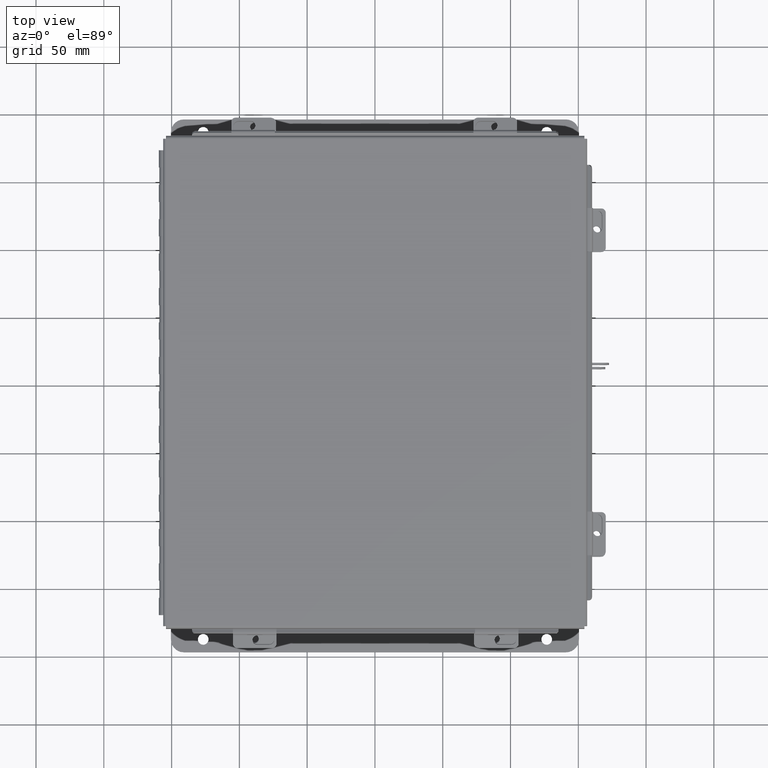
[diagram: clean part render]
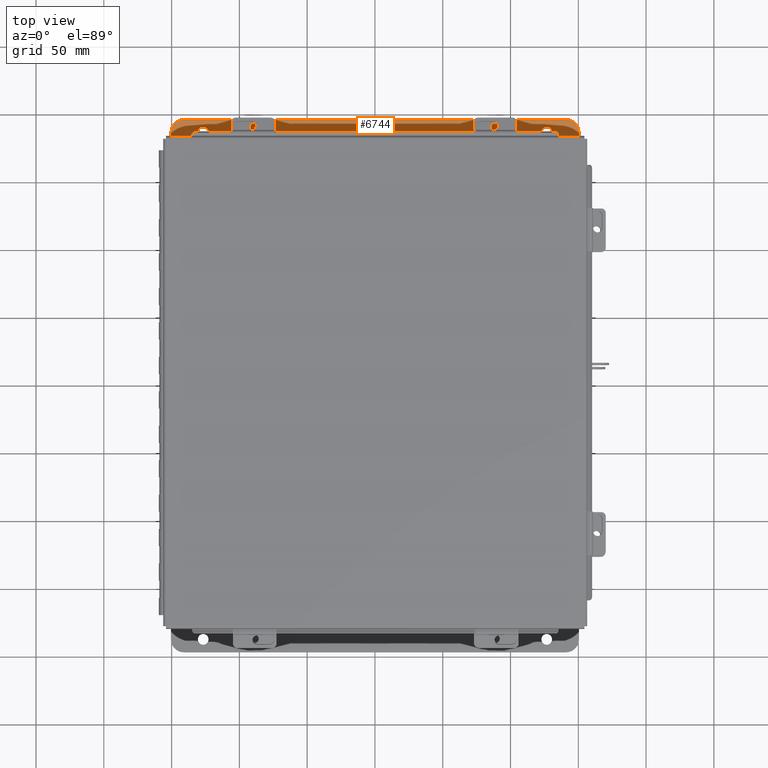
[diagram: same view with one face highlighted and labeled with its STEP entity id]
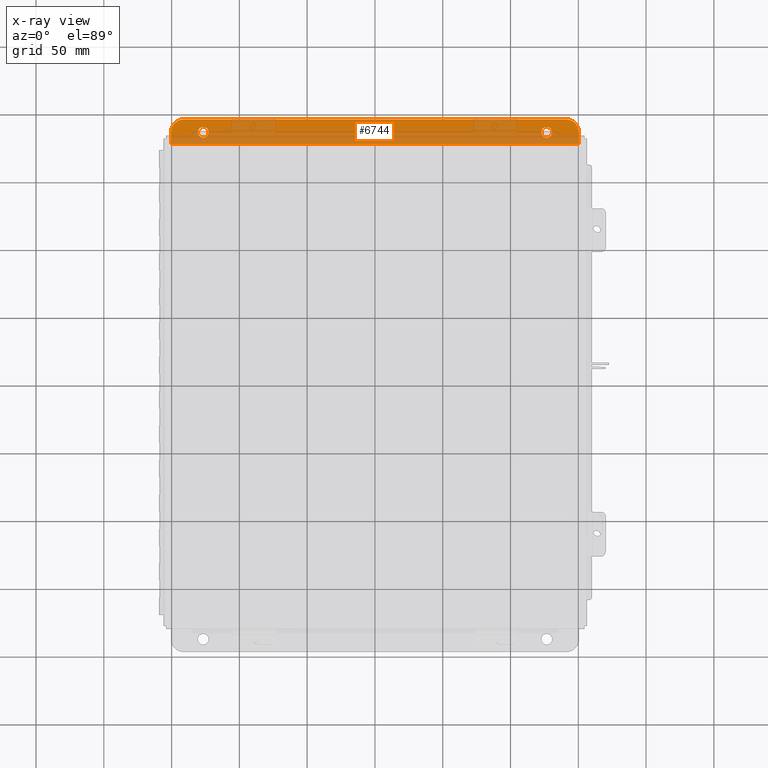
[diagram: x-ray of the same camera — body ghosted, the highlighted face saturated]
A machine part, top view. The second image highlights one B-rep face of the part: STEP entity #6744.
The next image is the same camera in x-ray: the body ghosted, the highlighted face saturated — about 61% of this face is hidden behind the body in this view.
In plain terms, the highlighted planar face has unit normal (0, 0, 1).
Its self-contained STEP definition (entity closure, byte-faithful):
#181 = LINE ( 'NONE', #10847, #17351 ) ;
#524 = ORIENTED_EDGE ( 'NONE', *, *, #4206, .F. ) ;
#1132 = VERTEX_POINT ( 'NONE', #17120 ) ;
#1214 = VERTEX_POINT ( 'NONE', #17306 ) ;
#1230 = CARTESIAN_POINT ( 'NONE',  ( -5.925300000000001800, 0.7378000000000000100, -3.112300000000003000 ) ) ;
#1485 = DIRECTION ( 'NONE',  ( 0.0000000000000000000, -1.000000000000000000, 3.502369222646487400E-015 ) ) ;
#1827 = DIRECTION ( 'NONE',  ( 0.0000000000000000000, 3.702694488566362300E-015, 1.000000000000000000 ) ) ;
#1882 = CARTESIAN_POINT ( 'NONE',  ( 4.987799999999998200, 0.2067999999999996000, -3.112300000000000700 ) ) ;
#2058 = FACE_OUTER_BOUND ( 'NONE', #14325, .T. ) ;
#2135 = CIRCLE ( 'NONE', #2266, 0.1560000000000001700 ) ;
#2266 = AXIS2_PLACEMENT_3D ( 'NONE', #2682, #12890, #4152 ) ;
#2313 = EDGE_CURVE ( 'NONE', #1132, #4672, #13348, .T. ) ;
#2622 = ORIENTED_EDGE ( 'NONE', *, *, #10954, .F. ) ;
#2682 = CARTESIAN_POINT ( 'NONE',  ( -4.987800000000000900, 0.3627999999999997300, -3.112300000000001200 ) ) ;
#2797 = VERTEX_POINT ( 'NONE', #4747 ) ;
#3550 = CARTESIAN_POINT ( 'NONE',  ( 5.550299999999999100, 0.3627999999999997300, -3.112300000000001200 ) ) ;
#3657 = AXIS2_PLACEMENT_3D ( 'NONE', #5601, #15816, #7061 ) ;
#3704 = VERTEX_POINT ( 'NONE', #6811 ) ;
#4152 = DIRECTION ( 'NONE',  ( 0.0000000000000000000, -1.000000000000000000, 3.502369222646487400E-015 ) ) ;
#4206 = EDGE_CURVE ( 'NONE', #9695, #7720, #6893, .T. ) ;
#4672 = VERTEX_POINT ( 'NONE', #14985 ) ;
#4746 = EDGE_CURVE ( 'NONE', #9695, #4672, #10757, .T. ) ;
#4747 = CARTESIAN_POINT ( 'NONE',  ( -4.987800000000000900, 0.5187999999999999300, -3.112300000000001600 ) ) ;
#4939 = CARTESIAN_POINT ( 'NONE',  ( 5.925299999999999100, 0.0000000000000000000, -3.112299999999999800 ) ) ;
#5012 = CARTESIAN_POINT ( 'NONE',  ( -5.925300000000000000, 0.01300000000000010700, -3.112299999999999800 ) ) ;
#5016 = DIRECTION ( 'NONE',  ( 0.0000000000000000000, -1.000000000000000000, 4.370956789862820400E-015 ) ) ;
#5364 = VECTOR ( 'NONE', #12920, 39.37007874015748100 ) ;
#5601 = CARTESIAN_POINT ( 'NONE',  ( 0.0000000000000000000, -1.092739197465705300E-014, -3.112299999999999800 ) ) ;
#5931 = FACE_BOUND ( 'NONE', #17736, .T. ) ;
#6402 = FACE_BOUND ( 'NONE', #13416, .T. ) ;
#6577 = CIRCLE ( 'NONE', #18121, 0.1560000000000001700 ) ;
#6744 = ADVANCED_FACE ( 'NONE', ( #6402, #5931, #2058 ), #17242, .T. ) ;
#6811 = CARTESIAN_POINT ( 'NONE',  ( -5.925300000000001800, 0.3628000000000008400, -3.112300000000001200 ) ) ;
#6849 = DIRECTION ( 'NONE',  ( -0.0000000000000000000, -3.702694488566362300E-015, -1.000000000000000000 ) ) ;
#6893 = LINE ( 'NONE', #4939, #14189 ) ;
#7061 = DIRECTION ( 'NONE',  ( 0.0000000000000000000, -1.000000000000000000, 3.702694488566362300E-015 ) ) ;
#7407 = CARTESIAN_POINT ( 'NONE',  ( 4.987799999999998200, 0.5187999999999999300, -3.112300000000001600 ) ) ;
#7720 = VERTEX_POINT ( 'NONE', #14433 ) ;
#7783 = CARTESIAN_POINT ( 'NONE',  ( 4.987799999999998200, 0.3627999999999997300, -3.112300000000001200 ) ) ;
#7877 = AXIS2_PLACEMENT_3D ( 'NONE', #3550, #13753, #5016 ) ;
#8199 = ORIENTED_EDGE ( 'NONE', *, *, #17479, .T. ) ;
#8664 = ORIENTED_EDGE ( 'NONE', *, *, #13637, .T. ) ;
#8991 = DIRECTION ( 'NONE',  ( 1.000000000000000000, -0.0000000000000000000, -0.0000000000000000000 ) ) ;
#9103 = EDGE_CURVE ( 'NONE', #12538, #12832, #14809, .T. ) ;
#9210 = LINE ( 'NONE', #1230, #5364 ) ;
#9231 = DIRECTION ( 'NONE',  ( 0.0000000000000000000, -1.000000000000000000, 3.502369222646487400E-015 ) ) ;
#9376 = DIRECTION ( 'NONE',  ( -0.0000000000000000000, -1.000000000000000000, 3.702694488566362300E-015 ) ) ;
#9401 = AXIS2_PLACEMENT_3D ( 'NONE', #7783, #18032, #9231 ) ;
#9695 = VERTEX_POINT ( 'NONE', #11932 ) ;
#9964 = ORIENTED_EDGE ( 'NONE', *, *, #13519, .T. ) ;
#9990 = AXIS2_PLACEMENT_3D ( 'NONE', #10576, #1827, #12047 ) ;
#10233 = DIRECTION ( 'NONE',  ( -0.0000000000000000000, -3.702694488566362300E-015, -1.000000000000000000 ) ) ;
#10576 = CARTESIAN_POINT ( 'NONE',  ( -5.550299999999999100, 0.3628000000000008400, -3.112300000000001200 ) ) ;
#10757 = CIRCLE ( 'NONE', #7877, 0.3750000000000000600 ) ;
#10847 = CARTESIAN_POINT ( 'NONE',  ( 5.925299999999999100, 0.01300000000000010700, -3.112299999999999800 ) ) ;
#10954 = EDGE_CURVE ( 'NONE', #12228, #3704, #9210, .T. ) ;
#11268 = CIRCLE ( 'NONE', #14372, 0.1560000000000001700 ) ;
#11477 = CARTESIAN_POINT ( 'NONE',  ( 4.987799999999998200, 0.3627999999999997300, -3.112300000000001200 ) ) ;
#11917 = CARTESIAN_POINT ( 'NONE',  ( 5.925299999999999100, 0.7378000000000000100, -3.112300000000003000 ) ) ;
#11932 = CARTESIAN_POINT ( 'NONE',  ( 5.925299999999999100, 0.3627999999999997300, -3.112300000000001200 ) ) ;
#12040 = ORIENTED_EDGE ( 'NONE', *, *, #4746, .T. ) ;
#12047 = DIRECTION ( 'NONE',  ( 0.0000000000000000000, -1.000000000000000000, 4.370956789862820400E-015 ) ) ;
#12228 = VERTEX_POINT ( 'NONE', #5012 ) ;
#12324 = DIRECTION ( 'NONE',  ( -1.000000000000000000, 0.0000000000000000000, 0.0000000000000000000 ) ) ;
#12538 = VERTEX_POINT ( 'NONE', #7407 ) ;
#12832 = VERTEX_POINT ( 'NONE', #1882 ) ;
#12885 = VECTOR ( 'NONE', #8991, 39.37007874015748100 ) ;
#12890 = DIRECTION ( 'NONE',  ( -0.0000000000000000000, -3.702694488566362300E-015, -1.000000000000000000 ) ) ;
#12920 = DIRECTION ( 'NONE',  ( -0.0000000000000000000, 1.000000000000000000, -3.702694488566362300E-015 ) ) ;
#13104 = ORIENTED_EDGE ( 'NONE', *, *, #16411, .F. ) ;
#13348 = LINE ( 'NONE', #11917, #12885 ) ;
#13416 = EDGE_LOOP ( 'NONE', ( #9964, #8664 ) ) ;
#13519 = EDGE_CURVE ( 'NONE', #2797, #1214, #11268, .T. ) ;
#13637 = EDGE_CURVE ( 'NONE', #1214, #2797, #2135, .T. ) ;
#13753 = DIRECTION ( 'NONE',  ( 0.0000000000000000000, 3.702694488566362300E-015, 1.000000000000000000 ) ) ;
#14189 = VECTOR ( 'NONE', #9376, 39.37007874015748100 ) ;
#14325 = EDGE_LOOP ( 'NONE', ( #524, #12040, #14418, #14919, #2622, #13104 ) ) ;
#14372 = AXIS2_PLACEMENT_3D ( 'NONE', #15605, #6849, #17074 ) ;
#14418 = ORIENTED_EDGE ( 'NONE', *, *, #2313, .F. ) ;
#14433 = CARTESIAN_POINT ( 'NONE',  ( 5.925299999999999100, 0.01300000000000010700, -3.112299999999999800 ) ) ;
#14809 = CIRCLE ( 'NONE', #9401, 0.1560000000000001700 ) ;
#14919 = ORIENTED_EDGE ( 'NONE', *, *, #16891, .T. ) ;
#14985 = CARTESIAN_POINT ( 'NONE',  ( 5.550299999999999100, 0.7378000000000000100, -3.112300000000003000 ) ) ;
#15605 = CARTESIAN_POINT ( 'NONE',  ( -4.987800000000000900, 0.3627999999999997300, -3.112300000000001200 ) ) ;
#15816 = DIRECTION ( 'NONE',  ( 0.0000000000000000000, 3.702694488566362300E-015, 1.000000000000000000 ) ) ;
#16108 = ORIENTED_EDGE ( 'NONE', *, *, #9103, .T. ) ;
#16411 = EDGE_CURVE ( 'NONE', #7720, #12228, #181, .T. ) ;
#16891 = EDGE_CURVE ( 'NONE', #1132, #3704, #18272, .T. ) ;
#17074 = DIRECTION ( 'NONE',  ( 0.0000000000000000000, -1.000000000000000000, 3.502369222646487400E-015 ) ) ;
#17120 = CARTESIAN_POINT ( 'NONE',  ( -5.550299999999999100, 0.7378000000000000100, -3.112300000000003000 ) ) ;
#17242 = PLANE ( 'NONE',  #3657 ) ;
#17306 = CARTESIAN_POINT ( 'NONE',  ( -4.987800000000000900, 0.2067999999999996000, -3.112300000000000700 ) ) ;
#17351 = VECTOR ( 'NONE', #12324, 39.37007874015748100 ) ;
#17479 = EDGE_CURVE ( 'NONE', #12832, #12538, #6577, .T. ) ;
#17736 = EDGE_LOOP ( 'NONE', ( #16108, #8199 ) ) ;
#18032 = DIRECTION ( 'NONE',  ( -0.0000000000000000000, -3.702694488566362300E-015, -1.000000000000000000 ) ) ;
#18121 = AXIS2_PLACEMENT_3D ( 'NONE', #11477, #10233, #1485 ) ;
#18272 = CIRCLE ( 'NONE', #9990, 0.3750000000000000600 ) ;